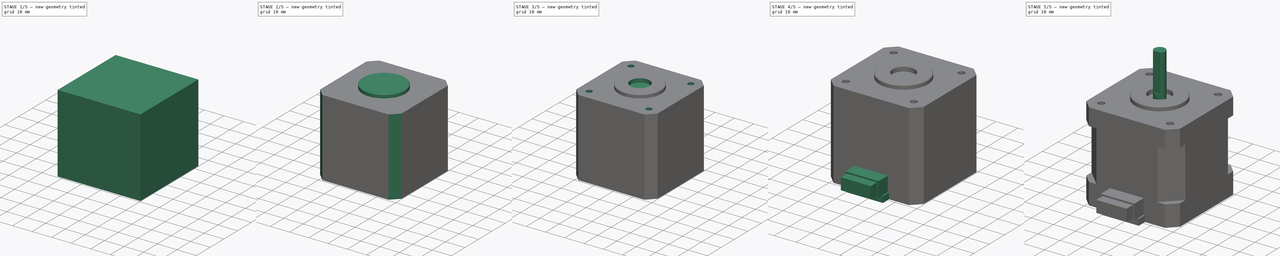
[diagram: build sequence overview — one tinted view per stage of 5, left to right]
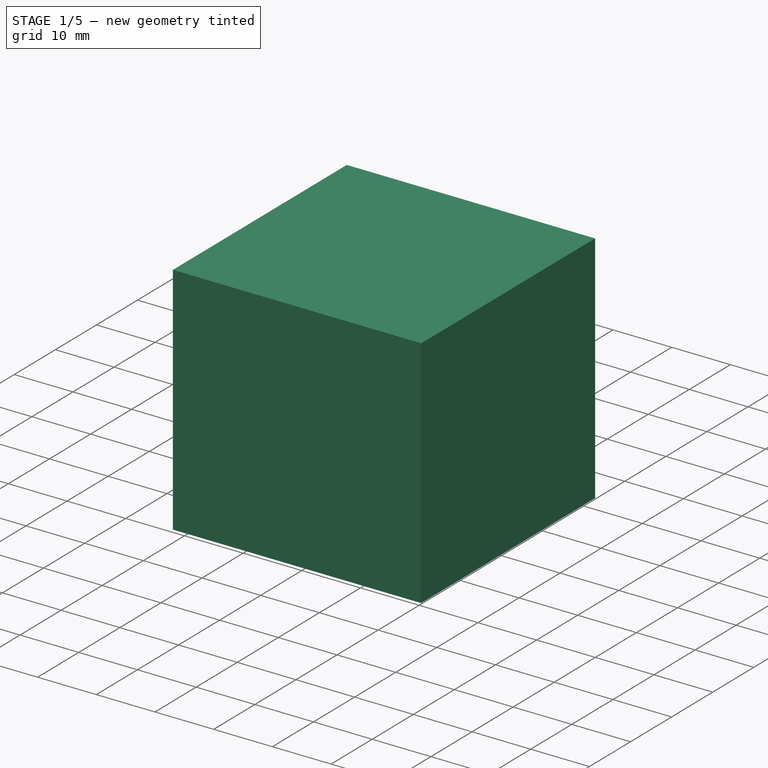
[diagram: stage 1 of 5 — iso view after this stage's code; geometry added in this stage tinted green]
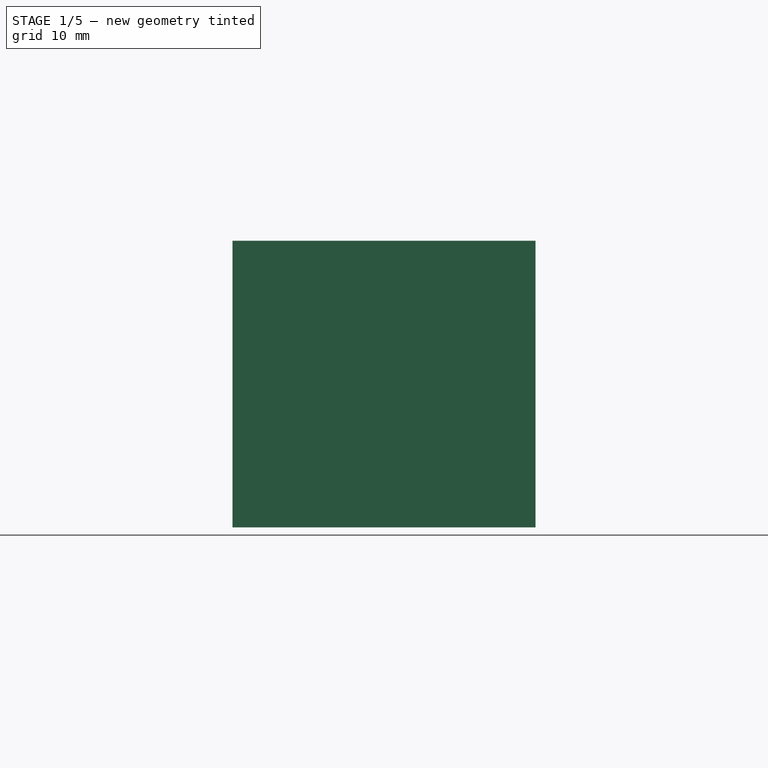
[diagram: stage 1 of 5 — front view after this stage's code; geometry added in this stage tinted green]
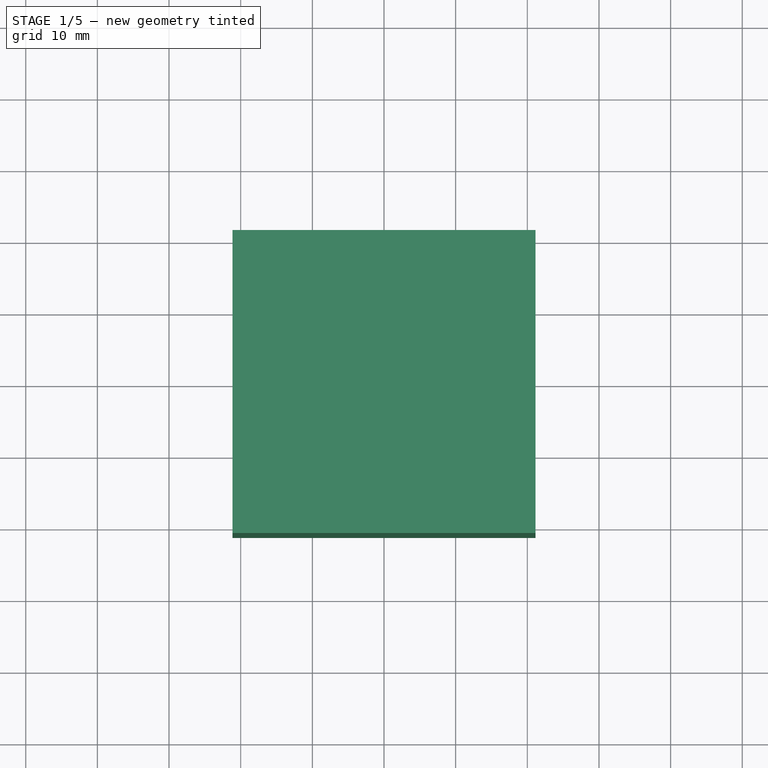
[diagram: stage 1 of 5 — top view after this stage's code; geometry added in this stage tinted green]
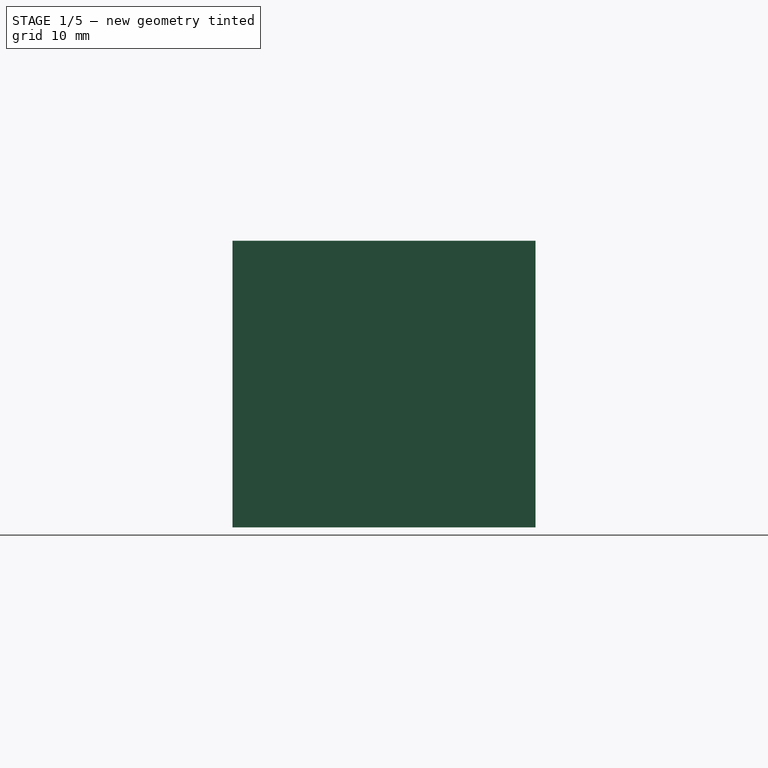
[diagram: stage 1 of 5 — right view after this stage's code; geometry added in this stage tinted green]
FCSTD DOCUMENT  (FreeCAD 0.14R3310 (Git))
Label: 49, MOTOR NEMA 17
License: CC-BY 3.0
LicenseURL: http://creativecommons.org/licenses/by/3.0/
objects: Sketcher::SketchObject×12, PartDesign::Pad×6, PartDesign::Pocket×6, PartDesign::Chamfer×2, Part::Box×1, Part::Chamfer×1
note: 40 computed .brp shape members not serialized (recipe doc carries the construction recipe); baked Part::Feature solids carry a one-line shape summary decoded from their .brp

FEATURE [Sketcher::SketchObject] Sketch
  sketch-geometry (4):
    g0: LineSegment StartX=-21.15 StartY=21.15 StartZ=0 EndX=21.15 EndY=21.15 EndZ=0
    g1: LineSegment StartX=21.15 StartY=21.15 StartZ=0 EndX=21.15 EndY=-21.15 EndZ=0
    g2: LineSegment StartX=21.15 StartY=-21.15 StartZ=0 EndX=-21.15 EndY=-21.15 EndZ=0
    g3: LineSegment StartX=-21.15 StartY=-21.15 StartZ=0 EndX=-21.15 EndY=21.15 EndZ=0
  constraints (11):
    c: Coincident(g0,g1)
    c: Coincident(g1,g2)
    c: Coincident(g2,g3)
    c: Coincident(g3,g0)
    c: Horizontal(g0)
    c: Horizontal(g2)
    c: Vertical(g1)
    c: Vertical(g3)
    c: Symmetric(g1,g0,g-1)
    c: Equal(g0,g1)
    c: Distance(g0) = 42.3
FEATURE [PartDesign::Pad] Pad
  Length = 40
  Length2 = 100
  Sketch = -> Sketch
  Type = 0
FEATURE [Part::Box] Box  label="Cube"
  Height = 22.75
  Length = 42.3
  Placement = pos=(-21.15,-21.15,9.6) rot=(0,0,1;0rad)
  Width = 42.3
FEATURE [Part::Chamfer] Chamfer002
  Base = -> Box
  Edges = 4 edges r=7.4: [Edge1,Edge3,Edge5,Edge7]
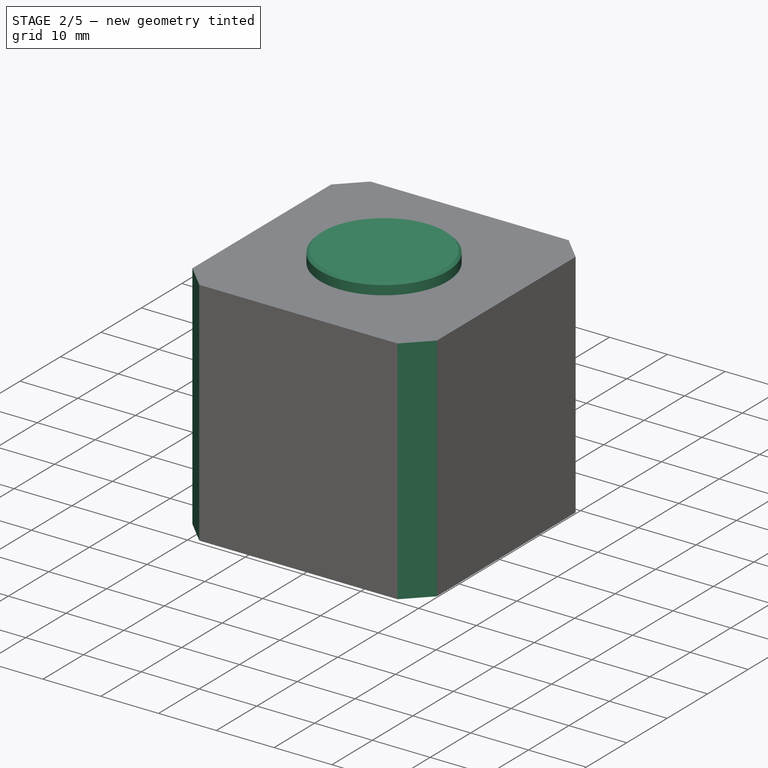
[diagram: stage 2 of 5 — iso view after this stage's code; geometry added in this stage tinted green]
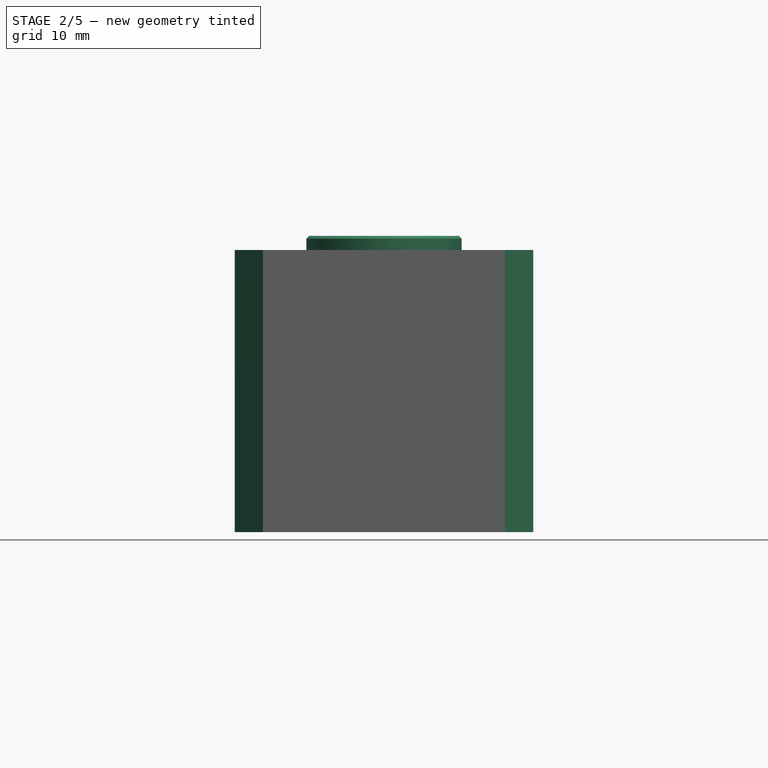
[diagram: stage 2 of 5 — front view after this stage's code; geometry added in this stage tinted green]
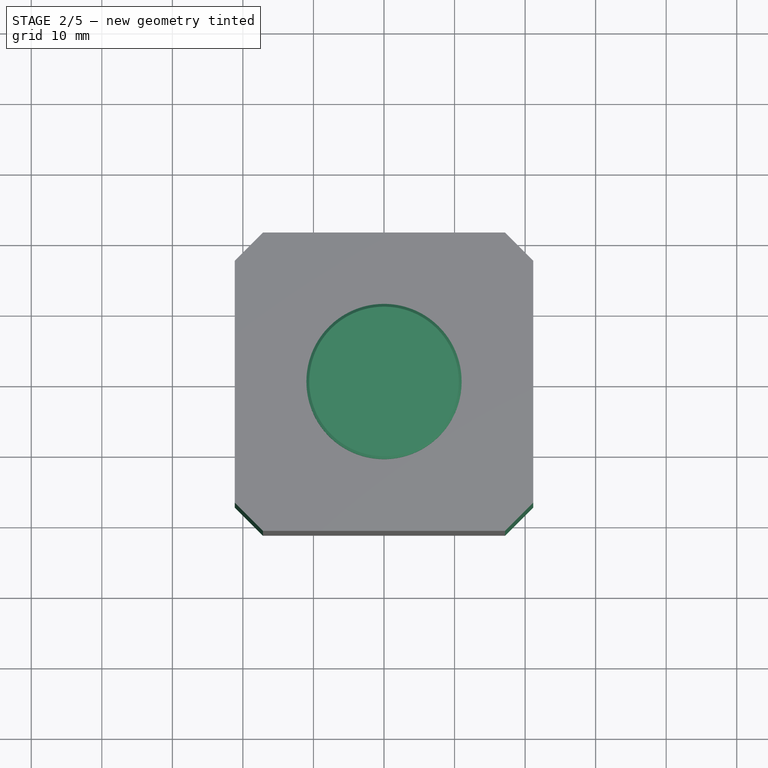
[diagram: stage 2 of 5 — top view after this stage's code; geometry added in this stage tinted green]
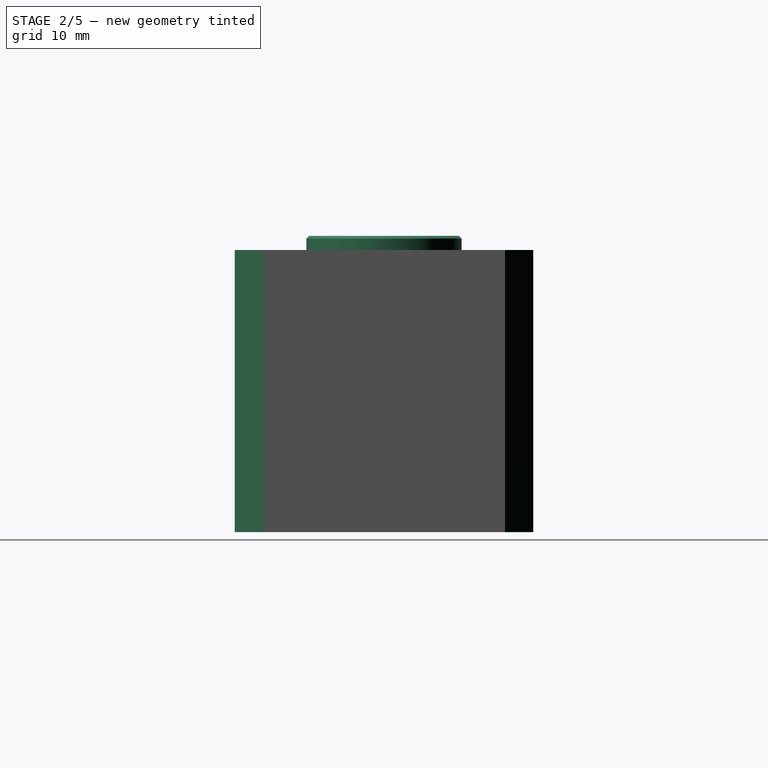
[diagram: stage 2 of 5 — right view after this stage's code; geometry added in this stage tinted green]
FEATURE [PartDesign::Chamfer] Chamfer
  Base = -> Pad [Edge5,Edge2,Edge1,Edge8]
  Size = 4
FEATURE [Sketcher::SketchObject] Sketch001
  Placement = pos=(0,0,40) rot=(0,0,1;0rad)
  Support = -> Chamfer [Face5]
  sketch-geometry (1):
    g0: Circle CenterX=0 CenterY=0 CenterZ=0 NormalX=0 NormalY=0 NormalZ=1 Radius=11
  constraints (2):
    c: Coincident(g0,g-1)
    c: Radius(g0) = 11
FEATURE [PartDesign::Pad] Pad001
  Length = 2
  Length2 = 100
  Sketch = -> Sketch001
  Type = 0
FEATURE [PartDesign::Chamfer] Chamfer001
  Base = -> Pad001 [Edge1]
  Size = 0.4
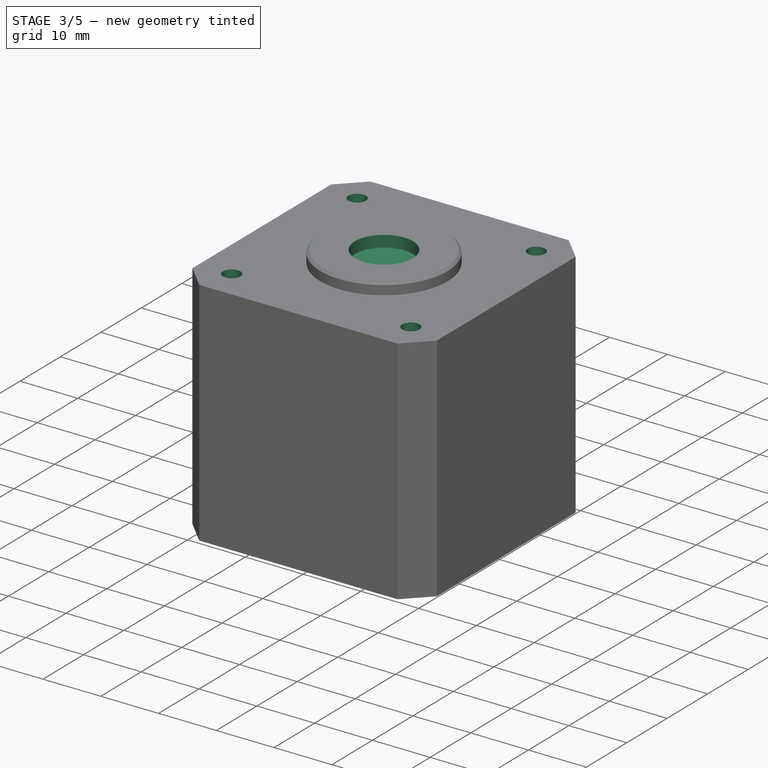
[diagram: stage 3 of 5 — iso view after this stage's code; geometry added in this stage tinted green]
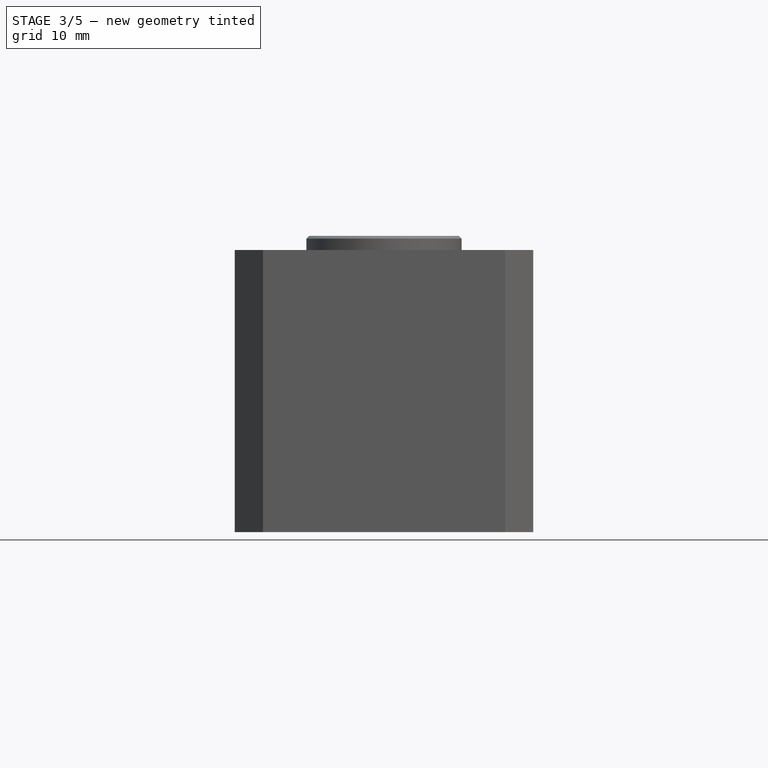
[diagram: stage 3 of 5 — front view after this stage's code; geometry added in this stage tinted green]
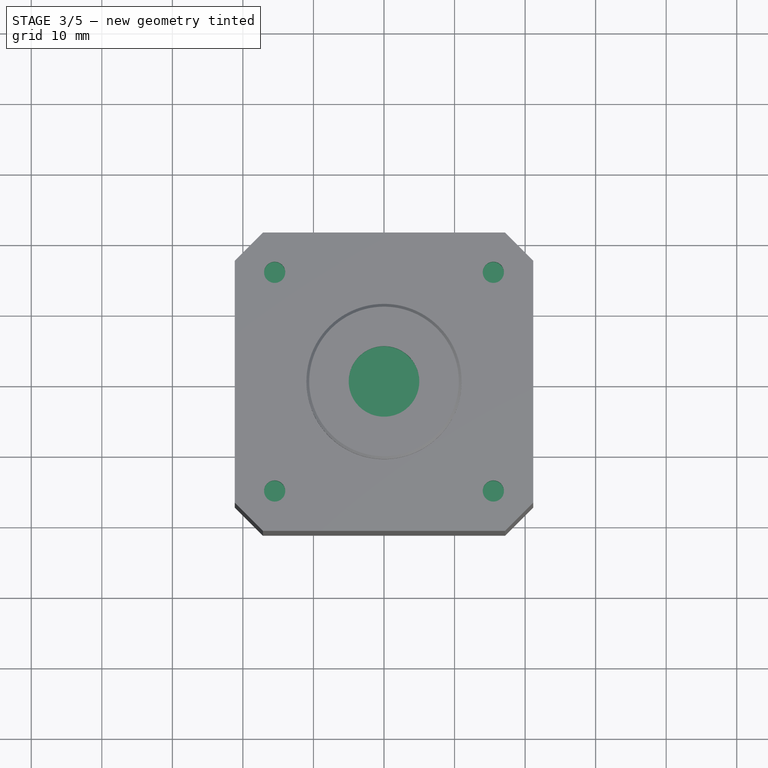
[diagram: stage 3 of 5 — top view after this stage's code; geometry added in this stage tinted green]
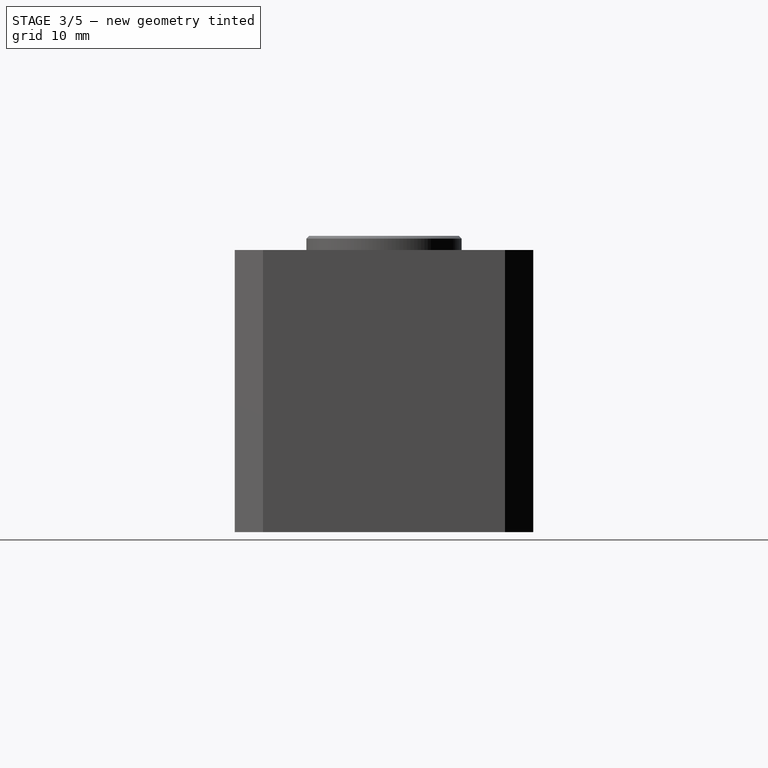
[diagram: stage 3 of 5 — right view after this stage's code; geometry added in this stage tinted green]
FEATURE [Sketcher::SketchObject] Sketch002
  Placement = pos=(0,0,42) rot=(0,0,1;0rad)
  Support = -> Chamfer001 [Face1]
  sketch-geometry (1):
    g0: Circle CenterX=0 CenterY=0 CenterZ=0 NormalX=0 NormalY=0 NormalZ=1 Radius=5
  constraints (2):
    c: Coincident(g0,g-1)
    c: Radius(g0) = 5
FEATURE [PartDesign::Pocket] Pocket
  Length = 2
  Sketch = -> Sketch002
  Type = 0
FEATURE [Sketcher::SketchObject] Sketch003
  Placement = pos=(0,0,0) rot=(1,0,0;3.14159rad)
  Support = -> Pocket [Face15]
  sketch-geometry (1):
    g0: Circle CenterX=0 CenterY=0 CenterZ=0 NormalX=0 NormalY=0 NormalZ=1 Radius=4.5
  constraints (2):
    c: Coincident(g0,g-1)
    c: Radius(g0) = 4.5
FEATURE [PartDesign::Pocket] Pocket001
  Length = 3
  Sketch = -> Sketch003
  Type = 0
FEATURE [Sketcher::SketchObject] Sketch004
  Placement = pos=(0,0,0) rot=(1,0,0;3.14159rad)
  Support = -> Pocket001 [Face15]
  sketch-geometry (4):
    g0: Circle CenterX=-15.5 CenterY=15.5 CenterZ=0 NormalX=0 NormalY=0 NormalZ=1 Radius=1.5
    g1: Circle CenterX=15.5 CenterY=15.5 CenterZ=0 NormalX=0 NormalY=0 NormalZ=1 Radius=1.5
    g2: Circle CenterX=-15.5 CenterY=-15.5 CenterZ=0 NormalX=0 NormalY=0 NormalZ=1 Radius=1.5
    g3: Circle CenterX=15.5 CenterY=-15.5 CenterZ=0 NormalX=0 NormalY=0 NormalZ=1 Radius=1.5
  constraints (9):
    c: Equal(g0,g2)
    c: Equal(g2,g1)
    c: Equal(g1,g3)
    c: Symmetric(g0,g1,g-2)
    c: Symmetric(g1,g3,g-1)
    c: Symmetric(g2,g3,g-2)
    c: Distance(g3,g2) = 31
    c: Radius(g2) = 1.5
    c: Distance(g1,g3) = 31
FEATURE [PartDesign::Pocket] Pocket002
  Length = 3
  Sketch = -> Sketch004
  Type = 0
FEATURE [Sketcher::SketchObject] Sketch005
  Placement = pos=(0,0,40) rot=(0,0,1;0rad)
  Support = -> Pocket002 [Face6]
  sketch-geometry (4):
    g0: Circle CenterX=-15.5 CenterY=15.5 CenterZ=0 NormalX=0 NormalY=0 NormalZ=1 Radius=1.5
    g1: Circle CenterX=15.5 CenterY=15.5 CenterZ=0 NormalX=0 NormalY=0 NormalZ=1 Radius=1.5
    g2: Circle CenterX=-15.5 CenterY=-15.5 CenterZ=0 NormalX=0 NormalY=0 NormalZ=1 Radius=1.5
    g3: Circle CenterX=15.5 CenterY=-15.5 CenterZ=0 NormalX=0 NormalY=0 NormalZ=1 Radius=1.5
  constraints (9):
    c: Symmetric(g3,g2,g-2)
    c: Symmetric(g0,g1,g-2)
    c: Symmetric(g1,g3,g-1)
    c: Equal(g1,g3)
    c: Equal(g3,g2)
    c: Equal(g2,g0)
    c: Radius(g0) = 1.5
    c: Distance(g1,g0) = 31
    c: Distance(g1,g3) = 31
FEATURE [PartDesign::Pocket] Pocket003
  Length = 3
  Sketch = -> Sketch005
  Type = 0
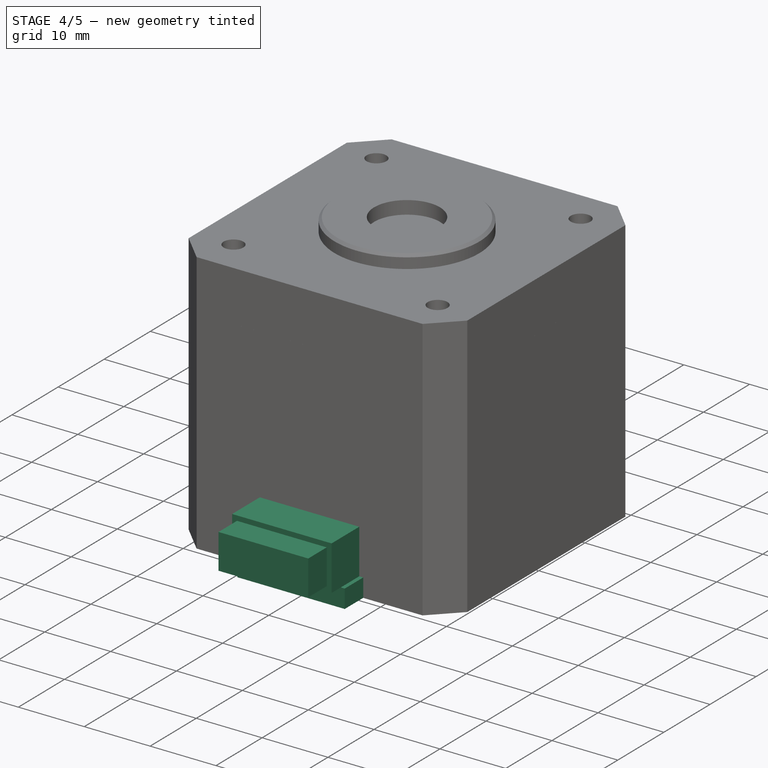
[diagram: stage 4 of 5 — iso view after this stage's code; geometry added in this stage tinted green]
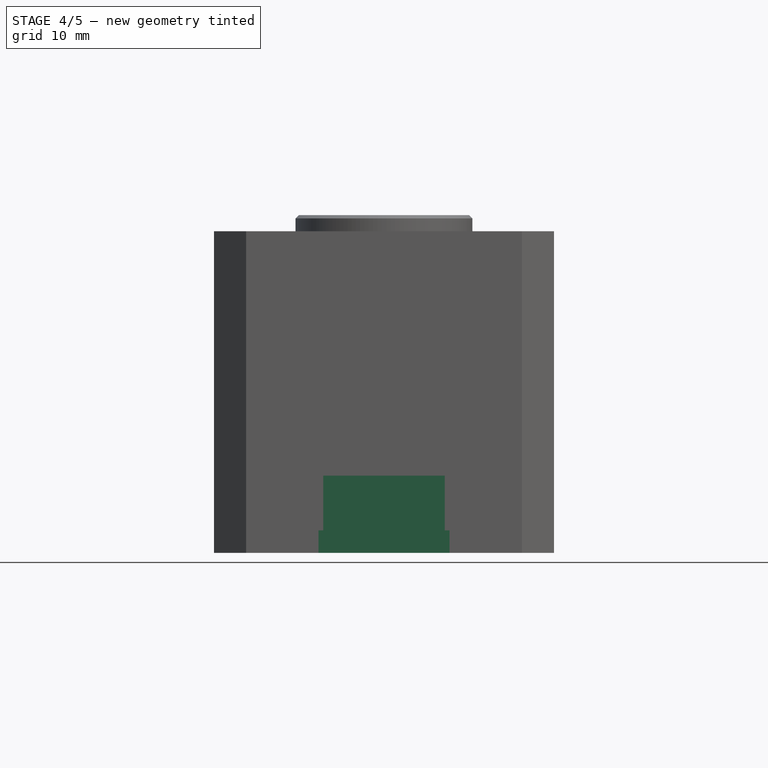
[diagram: stage 4 of 5 — front view after this stage's code; geometry added in this stage tinted green]
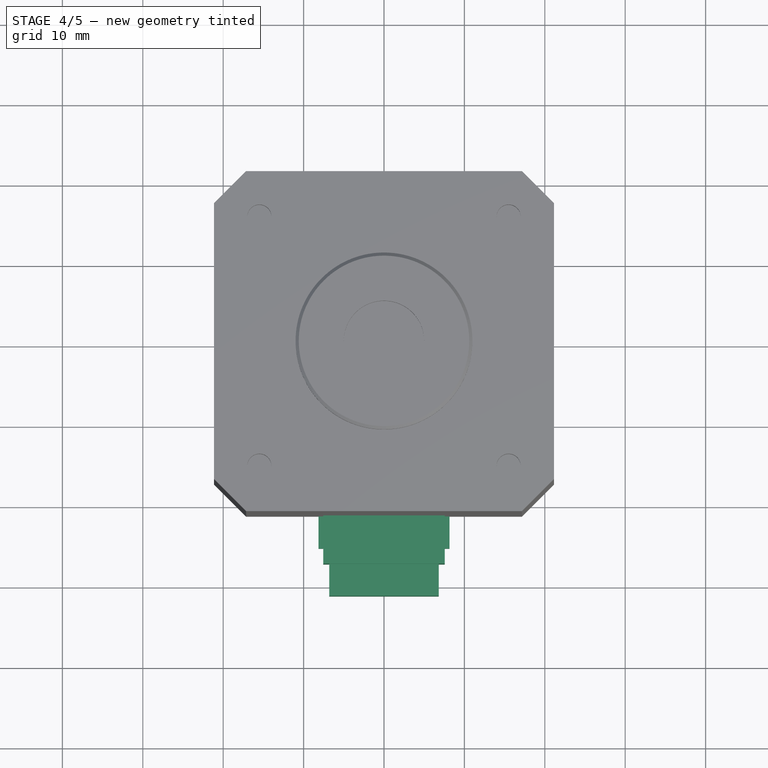
[diagram: stage 4 of 5 — top view after this stage's code; geometry added in this stage tinted green]
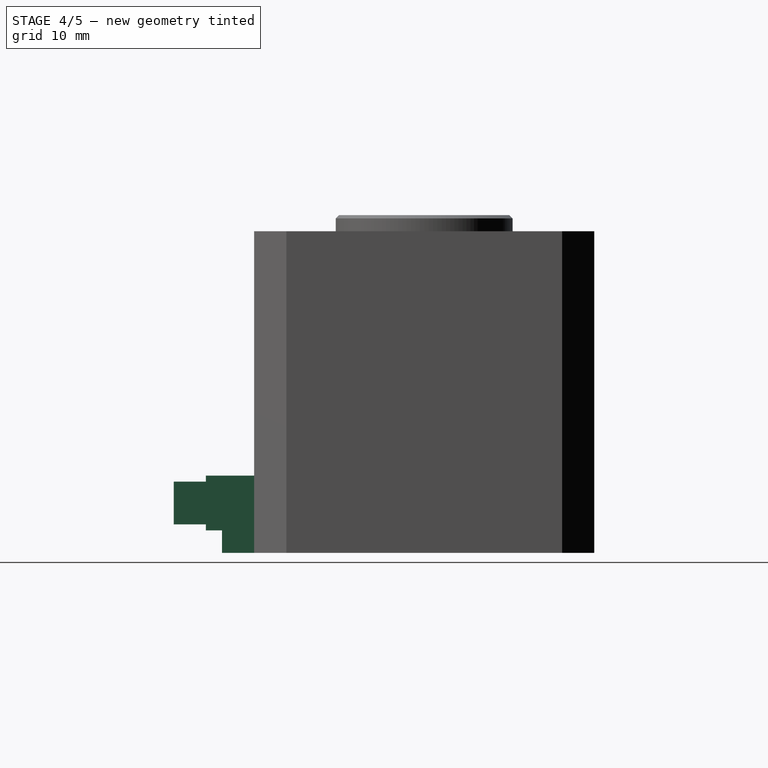
[diagram: stage 4 of 5 — right view after this stage's code; geometry added in this stage tinted green]
FEATURE [Sketcher::SketchObject] Sketch006
  Placement = pos=(0,-21.15,0) rot=(1,0,0;1.5708rad)
  Support = -> Pocket003 [Face14]
  sketch-geometry (4):
    g0: LineSegment StartX=-8.15 StartY=2.8 StartZ=0 EndX=8.15 EndY=2.8 EndZ=0
    g1: LineSegment StartX=8.15 StartY=2.8 StartZ=0 EndX=8.15 EndY=0 EndZ=0
    g2: LineSegment StartX=8.15 StartY=0 StartZ=0 EndX=-8.15 EndY=0 EndZ=0
    g3: LineSegment StartX=-8.15 StartY=0 StartZ=0 EndX=-8.15 EndY=2.8 EndZ=0
  constraints (12):
    c: Coincident(g0,g1)
    c: Coincident(g1,g2)
    c: Coincident(g2,g3)
    c: Coincident(g3,g0)
    c: Horizontal(g0)
    c: Horizontal(g2)
    c: Vertical(g1)
    c: Vertical(g3)
    c: PointOnObject(g1,g-1)
    c: Symmetric(g0,g0,g-2)
    c: Distance(g0) = 16.3
    c: Distance(g3) = 2.8
FEATURE [PartDesign::Pad] Pad002
  Length = 4
  Length2 = 100
  Sketch = -> Sketch006
  Type = 0
FEATURE [Sketcher::SketchObject] Sketch007
  ExternalGeometry = -> [Pad002]
  Placement = pos=(0,-21.15,0) rot=(1,0,0;1.5708rad)
  Support = -> Pad002 [Face14]
  sketch-geometry (4):
    g0: LineSegment StartX=-7.55 StartY=9.6 StartZ=0 EndX=7.55 EndY=9.6 EndZ=0
    g1: LineSegment StartX=7.55 StartY=9.6 StartZ=0 EndX=7.55 EndY=2.8 EndZ=0
    g2: LineSegment StartX=7.55 StartY=2.8 StartZ=0 EndX=-7.55 EndY=2.8 EndZ=0
    g3: LineSegment StartX=-7.55 StartY=2.8 StartZ=0 EndX=-7.55 EndY=9.6 EndZ=0
  constraints (12):
    c: Coincident(g0,g1)
    c: Coincident(g1,g2)
    c: Coincident(g2,g3)
    c: Coincident(g3,g0)
    c: Horizontal(g0)
    c: Horizontal(g2)
    c: Vertical(g1)
    c: Vertical(g3)
    c: PointOnObject(g1,g-3)
    c: Symmetric(g0,g0,g-2)
    c: Distance(g0) = 15.1
    c: Distance(g3) = 6.8
FEATURE [PartDesign::Pad] Pad003
  Length = 6
  Length2 = 100
  Sketch = -> Sketch007
  Type = 0
FEATURE [Sketcher::SketchObject] Sketch008
  ExternalGeometry = -> [Pad003]
  Placement = pos=(0,-27.15,0) rot=(1,0,0;1.5708rad)
  Support = -> Pad003 [Face37]
  sketch-geometry (4):
    g0: LineSegment StartX=-6.81 StartY=8.86 StartZ=0 EndX=6.81 EndY=8.86 EndZ=0
    g1: LineSegment StartX=6.81 StartY=8.86 StartZ=0 EndX=6.81 EndY=3.54 EndZ=0
    g2: LineSegment StartX=6.81 StartY=3.54 StartZ=0 EndX=-6.81 EndY=3.54 EndZ=0
    g3: LineSegment StartX=-6.81 StartY=3.54 StartZ=0 EndX=-6.81 EndY=8.86 EndZ=0
  constraints (12):
    c: Coincident(g0,g1)
    c: Coincident(g1,g2)
    c: Coincident(g2,g3)
    c: Coincident(g3,g0)
    c: Horizontal(g0)
    c: Horizontal(g2)
    c: Vertical(g1)
    c: Vertical(g3)
    c: Symmetric(g0,g0,g-2)
    c: Distance(g3) = 5.32
    c: Distance(g0) = 13.62
    c: Distance(g0,g-3) = 0.74
FEATURE [PartDesign::Pad] Pad004
  Length = 4
  Length2 = 100
  Sketch = -> Sketch008
  Type = 0
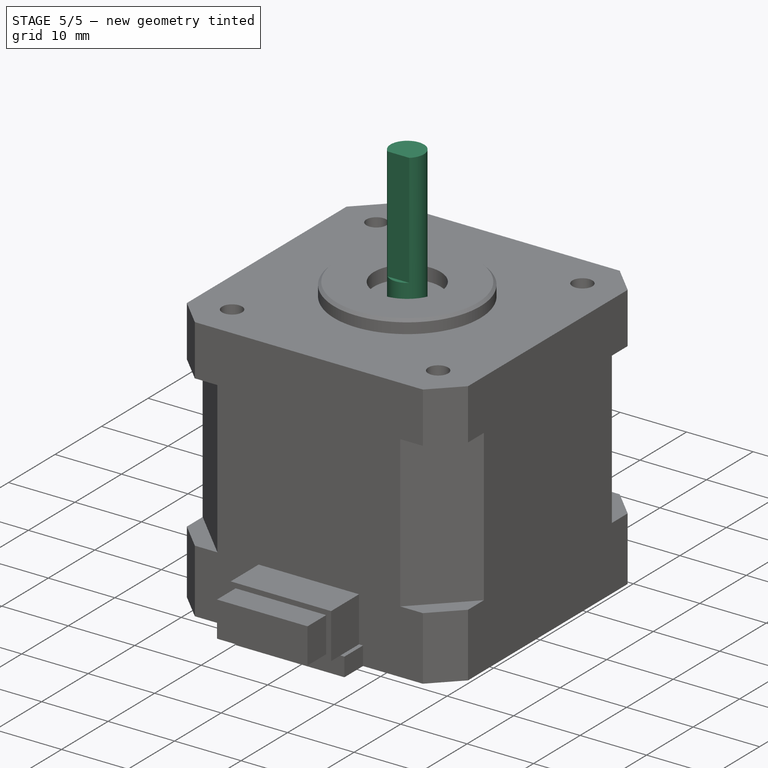
[diagram: stage 5 of 5 — iso view after this stage's code; geometry added in this stage tinted green]
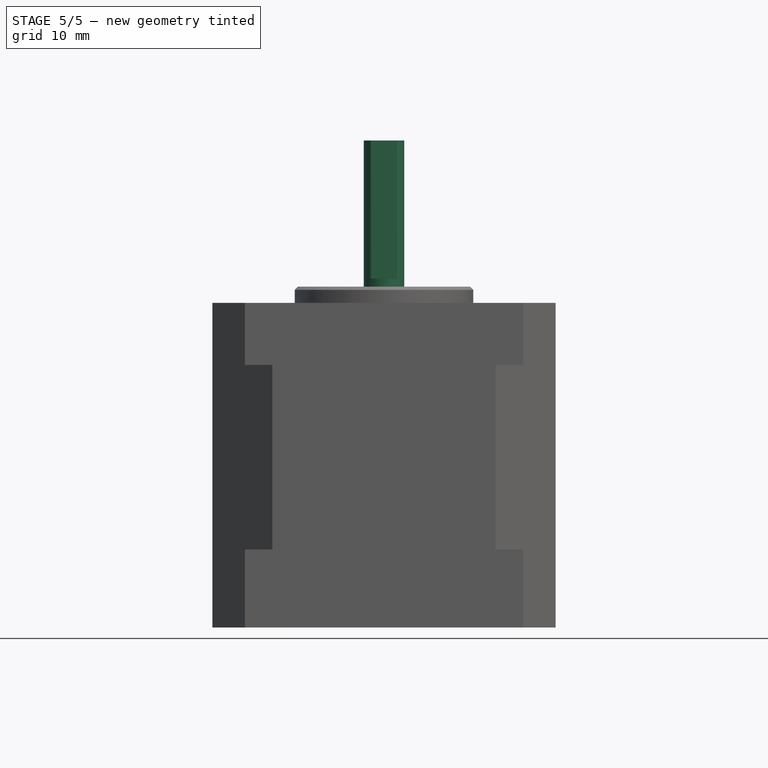
[diagram: stage 5 of 5 — front view after this stage's code; geometry added in this stage tinted green]
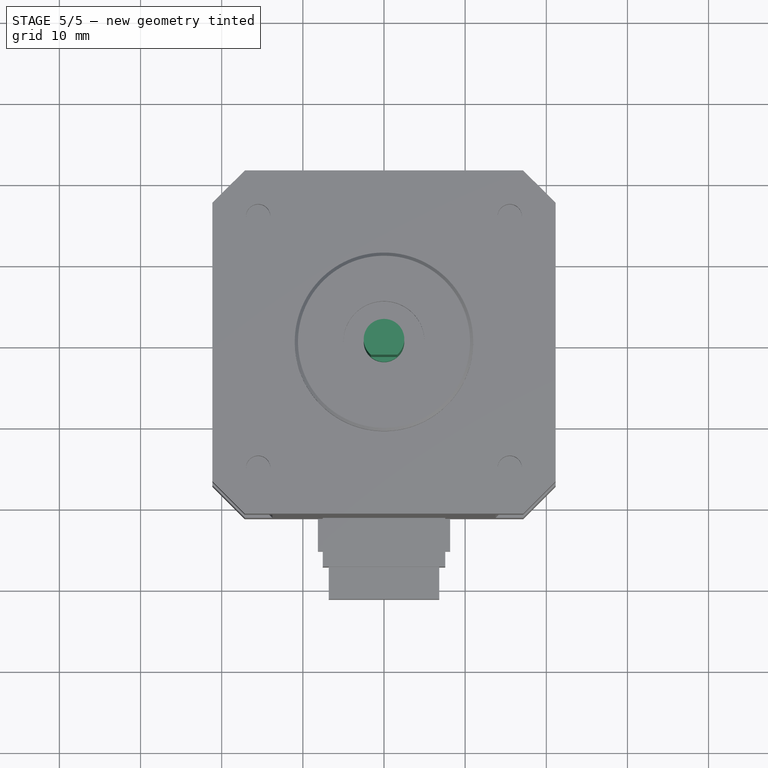
[diagram: stage 5 of 5 — top view after this stage's code; geometry added in this stage tinted green]
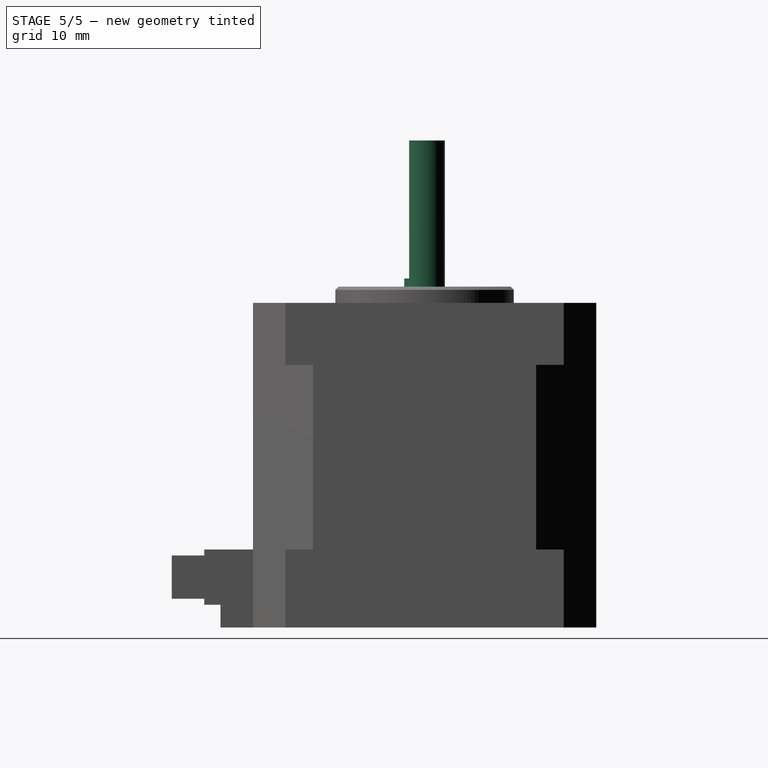
[diagram: stage 5 of 5 — right view after this stage's code; geometry added in this stage tinted green]
FEATURE [Sketcher::SketchObject] Sketch009
  Placement = pos=(0,0,40) rot=(0,0,1;0rad)
  Support = -> Pad004 [Face5]
  sketch-geometry (1):
    g0: Circle CenterX=0 CenterY=0 CenterZ=0 NormalX=0 NormalY=0 NormalZ=1 Radius=2.5
  constraints (2):
    c: Coincident(g0,g-1)
    c: Radius(g0) = 2.5
FEATURE [PartDesign::Pad] Pad005
  Length = 20
  Length2 = 100
  Sketch = -> Sketch009
  Type = 0
FEATURE [Sketcher::SketchObject] Sketch010
  Placement = pos=(0,0,60) rot=(0,0,1;0rad)
  Support = -> Pad005 [Face20]
  sketch-geometry (4):
    g0: LineSegment StartX=-2.5 StartY=-1.9 StartZ=0 EndX=2.5 EndY=-1.9 EndZ=0
    g1: LineSegment StartX=-2.5 StartY=-1.9 StartZ=0 EndX=-2.5 EndY=-2.9 EndZ=0
    g2: LineSegment StartX=-2.5 StartY=-2.9 StartZ=0 EndX=2.5 EndY=-2.9 EndZ=0
    g3: LineSegment StartX=2.5 StartY=-2.9 StartZ=0 EndX=2.5 EndY=-1.9 EndZ=0
  constraints (12):
    c: Horizontal(g0)
    c: DistanceY(g-1,g0) = -1.9
    c: Symmetric(g0,g0,g-2)
    c: Distance(g0) = 5
    c: Coincident(g0,g1)
    c: Coincident(g1,g2)
    c: Horizontal(g2)
    c: Coincident(g2,g3)
    c: Coincident(g3,g0)
    c: Vertical(g3)
    c: Vertical(g1)
    c: Distance(g1) = 1
FEATURE [PartDesign::Pocket] Pocket004
  Length = 17
  Sketch = -> Sketch010
  Type = 0
FEATURE [Sketcher::SketchObject] Sketch011
  ExternalGeometry = -> [Pocket004]
  Placement = pos=(21.15,0,0) rot=(0.57735,0.57735,0.57735;2.0944rad)
  Support = -> Pocket004 [Face12]
  sketch-geometry (4):
    g0: LineSegment StartX=-25 StartY=32.35 StartZ=0 EndX=25 EndY=32.35 EndZ=0
    g1: LineSegment StartX=25 StartY=32.35 StartZ=0 EndX=25 EndY=9.6 EndZ=0
    g2: LineSegment StartX=25 StartY=9.6 StartZ=0 EndX=-25 EndY=9.6 EndZ=0
    g3: LineSegment StartX=-25 StartY=9.6 StartZ=0 EndX=-25 EndY=32.35 EndZ=0
  constraints (12):
    c: Coincident(g0,g1)
    c: Coincident(g1,g2)
    c: Coincident(g2,g3)
    c: Coincident(g3,g0)
    c: Horizontal(g0)
    c: Horizontal(g2)
    c: Vertical(g1)
    c: Vertical(g3)
    c: PointOnObject(g2,g-4)
    c: Distance(g0,g-3) = 7.65
    c: Symmetric(g1,g2,g-2)
    c: Distance(g0) = 50
FEATURE [PartDesign::Pocket] Pocket005
  Length = 6
  Sketch = -> Sketch011
  Type = 2
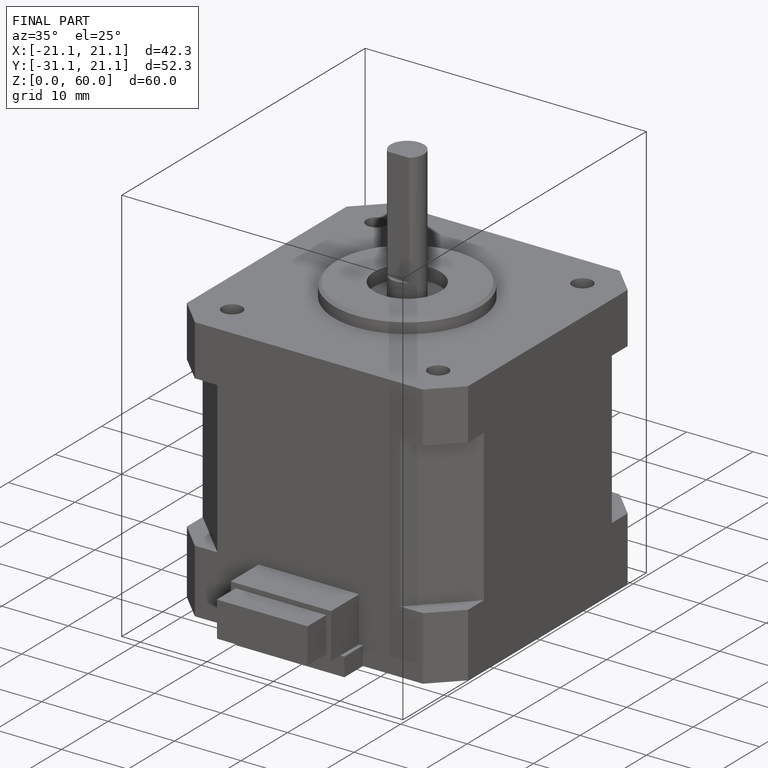
[diagram: finished part — iso view with bounding-box wireframe]
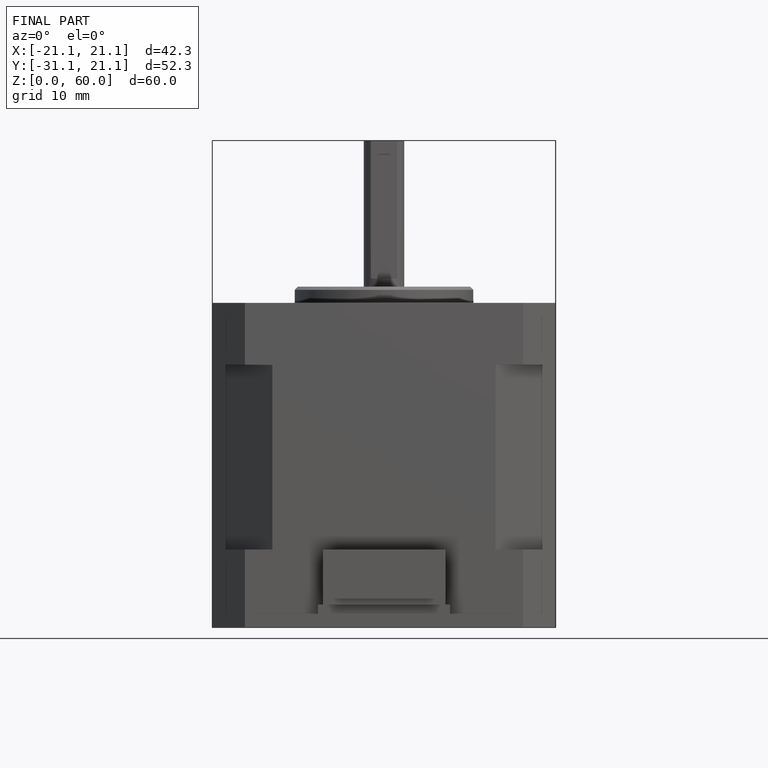
[diagram: finished part — front view with bounding-box wireframe]
